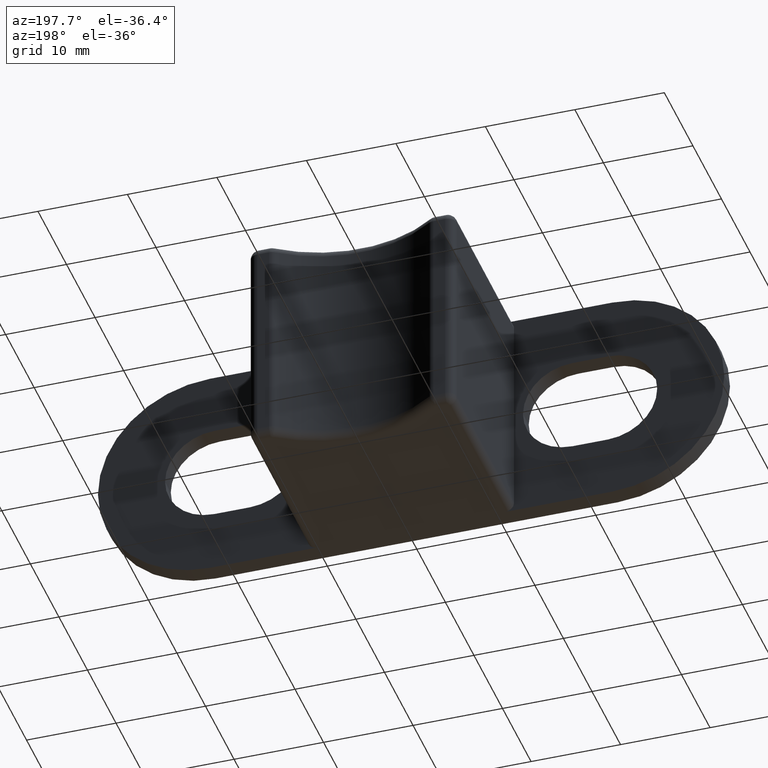
[diagram: clean part render]
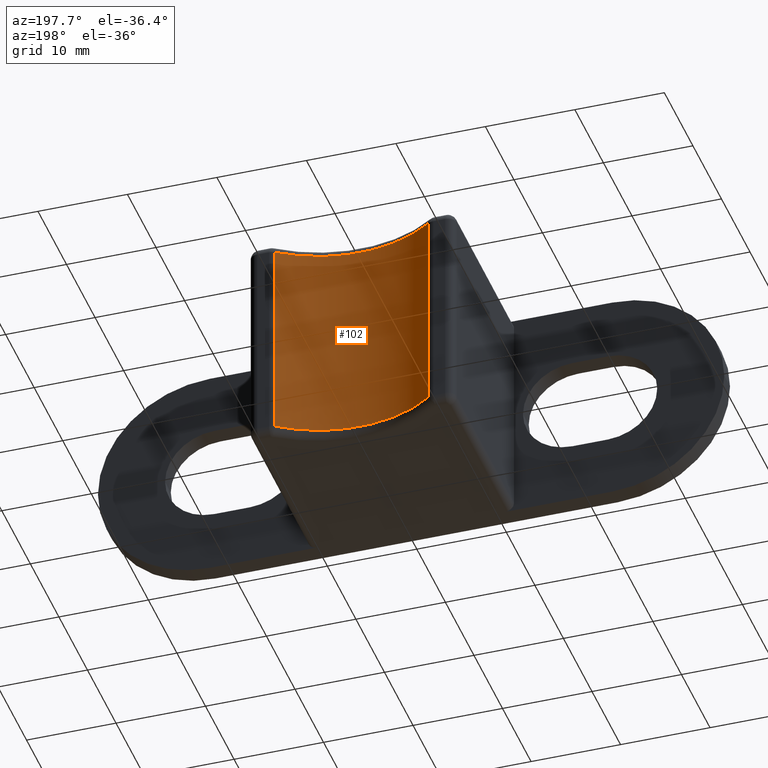
[diagram: same view with one face highlighted and labeled with its STEP entity id]
A machine part, auxiliary view. The second image highlights one B-rep face of the part: STEP entity #102.
In plain terms, the highlighted cylindrical surface (partial cylindrical patch) has radius 14.54 mm, axis along (0, 0, -1).
Its self-contained STEP definition (entity closure, byte-faithful):
#102 = ADVANCED_FACE( '', ( #342 ), #343, .F. );
#342 = FACE_OUTER_BOUND( '', #740, .T. );
#343 = CYLINDRICAL_SURFACE( '', #741, 14.5400000000000 );
#740 = EDGE_LOOP( '', ( #1412, #1413, #1414, #1415 ) );
#741 = AXIS2_PLACEMENT_3D( '', #1416, #1417, #1418 );
#1412 = ORIENTED_EDGE( '', *, *, #2770, .T. );
#1413 = ORIENTED_EDGE( '', *, *, #2771, .T. );
#1414 = ORIENTED_EDGE( '', *, *, #2772, .T. );
#1415 = ORIENTED_EDGE( '', *, *, #2773, .T. );
#1416 = CARTESIAN_POINT( '', ( -1.73472347597681E-015, 34.5400000000000, -25.0000000000000 ) );
#1417 = DIRECTION( '', ( 0.000000000000000, 0.000000000000000, -1.00000000000000 ) );
#1418 = DIRECTION( '', ( 0.000000000000000, -1.00000000000000, 0.000000000000000 ) );
#2770 = EDGE_CURVE( '', #3329, #3437, #3438, .T. );
#2771 = EDGE_CURVE( '', #3437, #3439, #3440, .F. );
#2772 = EDGE_CURVE( '', #3439, #3441, #3442, .F. );
#2773 = EDGE_CURVE( '', #3441, #3329, #3443, .T. );
#3329 = VERTEX_POINT( '', #4237 );
#3437 = VERTEX_POINT( '', #4374 );
#3438 = LINE( '', #4375, #4376 );
#3439 = VERTEX_POINT( '', #4377 );
#3440 = CIRCLE( '', #4378, 14.5400000000000 );
#3441 = VERTEX_POINT( '', #4379 );
#3442 = LINE( '', #4380, #4381 );
#3443 = CIRCLE( '', #4382, 14.5400000000000 );
#4237 = CARTESIAN_POINT( '', ( -8.58761510358754, 22.8069498069498, -24.0000000000000 ) );
#4374 = CARTESIAN_POINT( '', ( -8.58761510358754, 22.8069498069498, -1.00000000000000 ) );
#4375 = CARTESIAN_POINT( '', ( -8.58761510358754, 22.8069498069498, -25.0000000000000 ) );
#4376 = VECTOR( '', #5214, 1000.00000000000 );
#4377 = CARTESIAN_POINT( '', ( 8.58761510358754, 22.8069498069498, -1.00000000000000 ) );
#4378 = AXIS2_PLACEMENT_3D( '', #5215, #5216, #5217 );
#4379 = CARTESIAN_POINT( '', ( 8.58761510358754, 22.8069498069498, -24.0000000000000 ) );
#4380 = CARTESIAN_POINT( '', ( 8.58761510358754, 22.8069498069498, -25.0000000000000 ) );
#4381 = VECTOR( '', #5218, 1000.00000000000 );
#4382 = AXIS2_PLACEMENT_3D( '', #5219, #5220, #5221 );
#5214 = DIRECTION( '', ( 0.000000000000000, 0.000000000000000, 1.00000000000000 ) );
#5215 = CARTESIAN_POINT( '', ( -1.73472347597681E-015, 34.5400000000000, -1.00000000000000 ) );
#5216 = DIRECTION( '', ( 0.000000000000000, 0.000000000000000, -1.00000000000000 ) );
#5217 = DIRECTION( '', ( -1.00000000000000, 0.000000000000000, 0.000000000000000 ) );
#5218 = DIRECTION( '', ( 0.000000000000000, 0.000000000000000, 1.00000000000000 ) );
#5219 = CARTESIAN_POINT( '', ( -1.73472347597681E-015, 34.5400000000000, -24.0000000000000 ) );
#5220 = DIRECTION( '', ( 0.000000000000000, 0.000000000000000, -1.00000000000000 ) );
#5221 = DIRECTION( '', ( -1.00000000000000, 0.000000000000000, 0.000000000000000 ) );